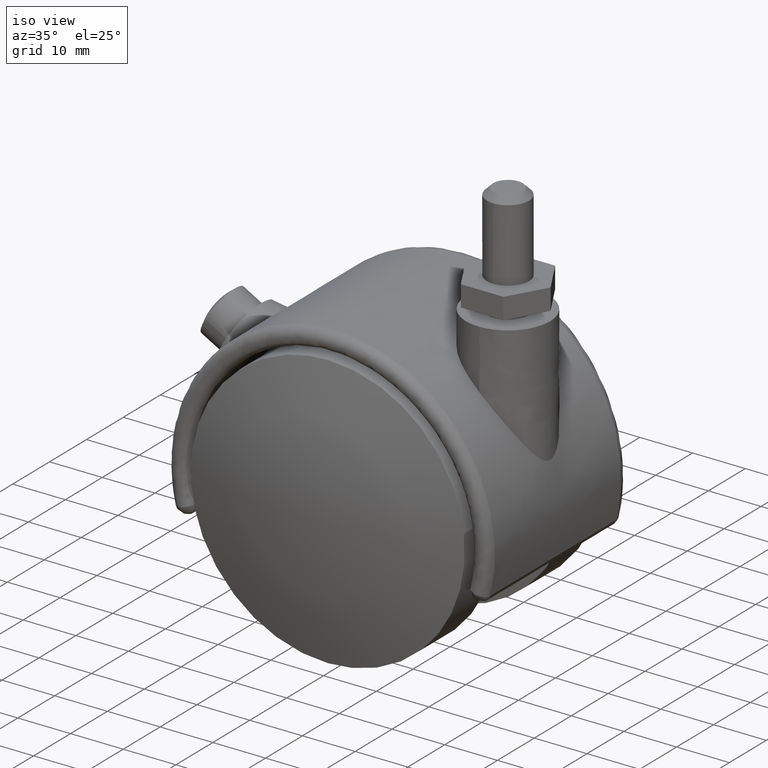
[diagram: clean part render]
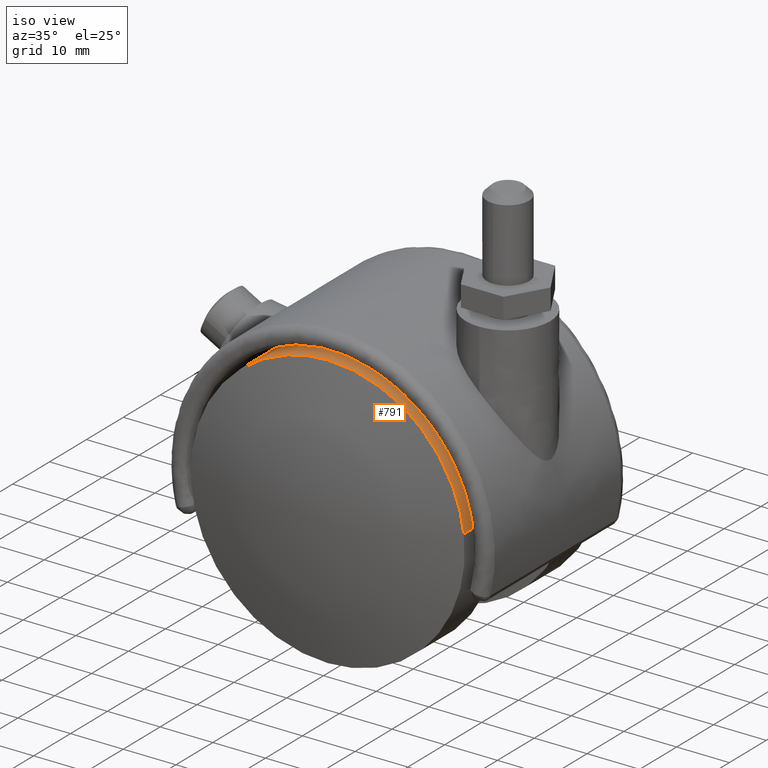
[diagram: same view with one face highlighted and labeled with its STEP entity id]
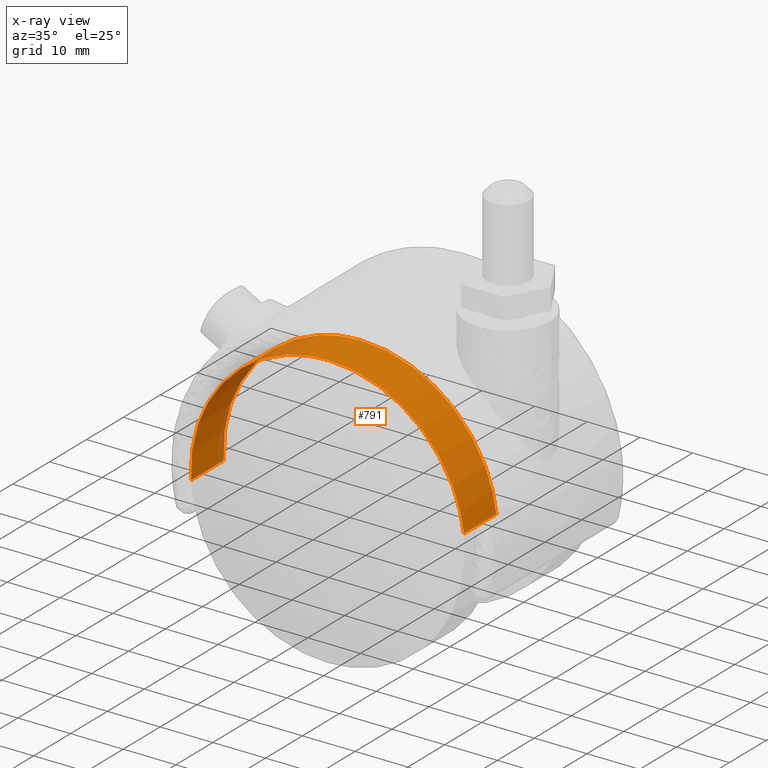
[diagram: x-ray of the same camera — body ghosted, the highlighted face saturated]
A machine part, iso view. The second image highlights one B-rep face of the part: STEP entity #791.
The next image is the same camera in x-ray: the body ghosted, the highlighted face saturated — about 2% of this face is hidden behind the body in this view.
In plain terms, the highlighted face is a freeform B-spline surface patch.
Its self-contained STEP definition (entity closure, byte-faithful):
#628=CARTESIAN_POINT('',(25.818248836254870,-9.999999999999922,3.068880419489900));
#629=VERTEX_POINT('',#628);
#647=CARTESIAN_POINT('',(25.818248822043071,-18.850000010721249,3.068880539053032));
#648=VERTEX_POINT('',#647);
#649=CARTESIAN_POINT('',(25.818248822043071,-18.850000010721249,3.068880539053032));
#650=CARTESIAN_POINT('',(25.818248836254870,-9.999999999999922,3.068880419489900));
#651=QUASI_UNIFORM_CURVE('',1,(#649,#650),.UNSPECIFIED.,.F.,.U.);
#652=EDGE_CURVE('',#648,#629,#651,.T.);
#671=CARTESIAN_POINT('',(-25.951506237376812,-18.850000010721249,-1.587237855775190));
#672=VERTEX_POINT('',#671);
#686=CARTESIAN_POINT('',(-25.951506255837991,-10.000000000000179,-1.587237553928227));
#687=VERTEX_POINT('',#686);
#688=CARTESIAN_POINT('',(-25.951506237376812,-18.850000010721249,-1.587237855775190));
#689=CARTESIAN_POINT('',(-25.951506255837991,-10.000000000000179,-1.587237553928227));
#690=QUASI_UNIFORM_CURVE('',1,(#688,#689),.UNSPECIFIED.,.F.,.U.);
#691=EDGE_CURVE('',#672,#687,#690,.T.);
#709=CARTESIAN_POINT('',(-25.951504758968529,-19.071250010989289,-1.587262027906282));
#710=CARTESIAN_POINT('',(-27.538766786874810,-19.071250010989282,24.364242731062255));
#711=CARTESIAN_POINT('',(-1.587262027906282,-19.071250010989289,25.951504758968529));
#712=CARTESIAN_POINT('',(22.920130761827025,-19.071250010989296,27.450441115045709));
#713=CARTESIAN_POINT('',(25.818247685455319,-19.071250010989285,3.068890101075720));
#714=CARTESIAN_POINT('',(-25.951504758968529,-9.773218749725267,-1.587262027906282));
#715=CARTESIAN_POINT('',(-27.538766786874810,-9.773218749725267,24.364242731062255));
#716=CARTESIAN_POINT('',(-1.587262027906282,-9.773218749725267,25.951504758968529));
#717=CARTESIAN_POINT('',(22.920130761827025,-9.773218749725267,27.450441115045709));
#718=CARTESIAN_POINT('',(25.818247685455319,-9.773218749725269,3.068890101075720));
#726=(BOUNDED_SURFACE()B_SPLINE_SURFACE(2,1,((#709,#714),(#710,#715),(#711,#716),(#712,#717),(#713,#718)),.UNSPECIFIED.,.F.,.F.,.U.)B_SPLINE_SURFACE_WITH_KNOTS((3,2,3),(2,2),(0.0,43.078210486801879,84.433292554131683),(0.0,9.298031261264022),.UNSPECIFIED.)GEOMETRIC_REPRESENTATION_ITEM()RATIONAL_B_SPLINE_SURFACE(((1.0,1.0),(0.707106781186548,0.707106781186548),(1.0,1.0),(0.718822509939086,0.718822509939086),(0.977505800795127,0.977505800795127)))REPRESENTATION_ITEM('')SURFACE());
#727=CARTESIAN_POINT('',(0.0,-10.0,26.0));
#728=VERTEX_POINT('',#727);
#729=CARTESIAN_POINT('',(0.0,-10.0,26.0));
#730=CARTESIAN_POINT('',(23.092546395168274,-10.000000000000002,26.000000000000007));
#731=CARTESIAN_POINT('',(25.818248836254877,-9.999999999999922,3.068880419489899));
#739=(BOUNDED_CURVE()B_SPLINE_CURVE(2,(#729,#730,#731),.UNSPECIFIED.,.F.,.U.)B_SPLINE_CURVE_WITH_KNOTS((3,3),(0.0,0.229562536890182),.UNSPECIFIED.)CURVE()GEOMETRIC_REPRESENTATION_ITEM()RATIONAL_B_SPLINE_CURVE((1.0,0.731050758605011,0.956026878404610))REPRESENTATION_ITEM(''));
#740=EDGE_CURVE('',#728,#629,#739,.T.);
#741=ORIENTED_EDGE('',*,*,#740,.F.);
#742=CARTESIAN_POINT('',(-25.951506255837991,-10.000000000000181,-1.587237553928228));
#743=CARTESIAN_POINT('',(-26.000000000000004,-10.0,-0.794359574463838));
#744=CARTESIAN_POINT('',(-26.0,-10.0,0.0));
#745=CARTESIAN_POINT('',(-26.000000000000007,-10.0,26.000000000000007));
#746=CARTESIAN_POINT('',(0.0,-10.0,26.0));
#754=(BOUNDED_CURVE()B_SPLINE_CURVE(2,(#742,#743,#744,#745,#746),.UNSPECIFIED.,.F.,.U.)B_SPLINE_CURVE_WITH_KNOTS((3,2,3),(0.739333124964974,0.750000000000000,1.0),.UNSPECIFIED.)CURVE()GEOMETRIC_REPRESENTATION_ITEM()RATIONAL_B_SPLINE_CURVE((0.976072390419827,0.987502978545242,1.0,0.707106781186547,1.0))REPRESENTATION_ITEM(''));
#755=EDGE_CURVE('',#687,#728,#754,.T.);
#756=ORIENTED_EDGE('',*,*,#755,.F.);
#757=ORIENTED_EDGE('',*,*,#691,.F.);
#758=CARTESIAN_POINT('',(0.0,-18.850000010721249,26.0));
#759=VERTEX_POINT('',#758);
#760=CARTESIAN_POINT('',(-25.951506237376812,-18.850000010721256,-1.587237855775190));
#761=CARTESIAN_POINT('',(-26.000000000000004,-18.850000010721249,-0.794359725810473));
#762=CARTESIAN_POINT('',(-26.0,-18.850000010721249,0.0));
#763=CARTESIAN_POINT('',(-26.000000000000007,-18.850000010721253,26.000000000000007));
#764=CARTESIAN_POINT('',(0.0,-18.850000010721249,26.0));
#772=(BOUNDED_CURVE()B_SPLINE_CURVE(2,(#760,#761,#762,#763,#764),.UNSPECIFIED.,.F.,.U.)B_SPLINE_CURVE_WITH_KNOTS((3,2,3),(0.739333122958049,0.750000000000000,1.0),.UNSPECIFIED.)CURVE()GEOMETRIC_REPRESENTATION_ITEM()RATIONAL_B_SPLINE_CURVE((0.976072386118597,0.987502976193982,1.0,0.707106781186547,1.0))REPRESENTATION_ITEM(''));
#773=EDGE_CURVE('',#672,#759,#772,.T.);
#774=ORIENTED_EDGE('',*,*,#773,.T.);
#775=CARTESIAN_POINT('',(0.0,-18.850000010721249,26.0));
#776=CARTESIAN_POINT('',(23.092546287474924,-18.850000010721256,26.000000000000004));
#777=CARTESIAN_POINT('',(25.818248822043074,-18.850000010721249,3.068880539053032));
#785=(BOUNDED_CURVE()B_SPLINE_CURVE(2,(#775,#776,#777),.UNSPECIFIED.,.F.,.U.)B_SPLINE_CURVE_WITH_KNOTS((3,3),(0.0,0.229562536107535),.UNSPECIFIED.)CURVE()GEOMETRIC_REPRESENTATION_ITEM()RATIONAL_B_SPLINE_CURVE((1.0,0.731050759521938,0.956026876870590))REPRESENTATION_ITEM(''));
#786=EDGE_CURVE('',#759,#648,#785,.T.);
#787=ORIENTED_EDGE('',*,*,#786,.T.);
#788=ORIENTED_EDGE('',*,*,#652,.T.);
#789=EDGE_LOOP('',(#741,#756,#757,#774,#787,#788));
#790=FACE_OUTER_BOUND('',#789,.T.);
#791=ADVANCED_FACE('',(#790),#726,.T.);